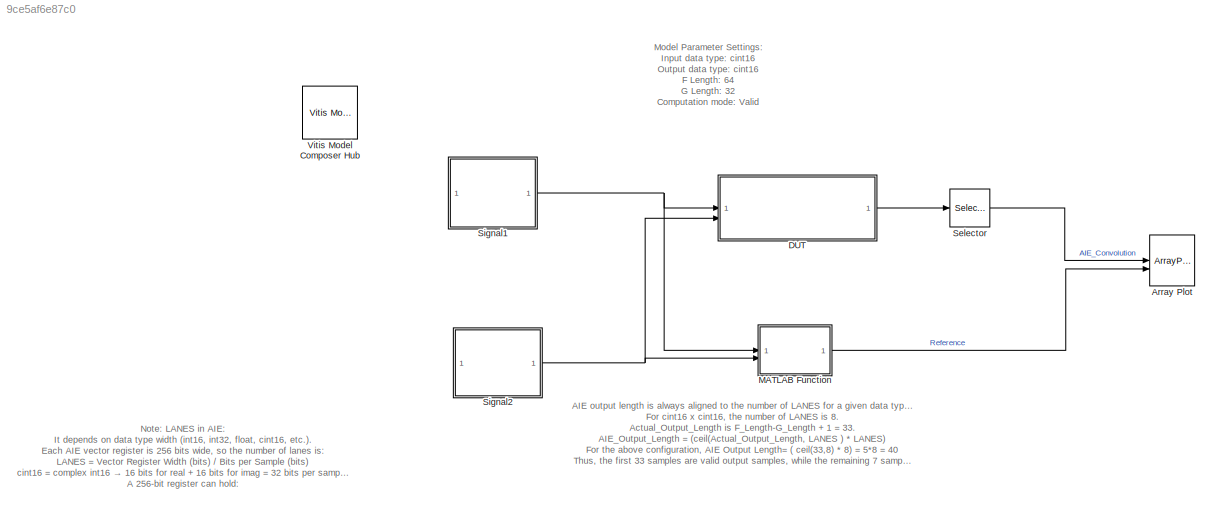
MODEL slx_9ce5af6e87c0
KIND model
CONFIG AbsTol = auto
CONFIG EnableMultiTasking = off
CONFIG FixedStep = auto
CONFIG MaxStep = auto
CONFIG MinStep = auto
CONFIG RelTol = 1e-3
CONFIG SampleTimeConstraint = Unconstrained
CONFIG SolverName = VariableStepAuto
CONFIG StartTime = 0.0
CONFIG StopTime = 1024/100e6
BLOCK [ArrayPlot] Array Plot
  GraphicalSettings = {"Style":{"BackgroundColor":[0.12941176470588237,0.12941176470588237,0.12941176470588237],"AxesColor":[0.070588235294117646,0.070588235294117646,0.070588235294117646],"LabelsColor":[0.85098039215686272,0.85098039215686272,0.85098039215686272],"PreserveColors":false,"Visible":[false,false,true,true],"LineStyle":["-","-","-","-"],"LineWidth":[1.5,1.5,1.5,1.5],"BarWidth":[0.9,0.9,0.9,0.9],"LineColor"...<+353ch>
  NumInputPorts = 2
  ScopeFrameLocation = window
  ShowLegend = on
  WasSavedAsWebScope = on
  WindowPosition = [560.000000,350.000000,800.000000,500.000000,]
  YLimits = [-25.5 29.5]
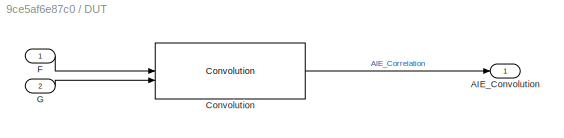
BLOCK [SubSystem] DUT
BLOCK [Outport] DUT/AIE_Convolution
BLOCK [Reference] DUT/Convolution  REF=aieDSP/Convolution
  SourceBlock = aieDSP/Convolution
  SourceType = Convolution
BLOCK [Inport] DUT/F
BLOCK [Inport] DUT/G
  Port = 2
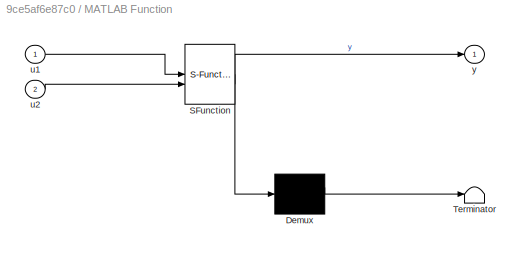
BLOCK [SubSystem] MATLAB Function
  ErrorFcn = Stateflow.Translate.translate
  PermitHierarchicalResolution = ExplicitOnly
  SFBlockType = MATLAB Function
  TreatAsAtomicUnit = on
BLOCK [Demux] MATLAB Function/ Demux 
  Outputs = 1
BLOCK [S-Function] MATLAB Function/ SFunction 
  EnableBusSupport = off
  FunctionName = sf_sfun
  PortCounts = [2 2]
  SFcnIsStateOwnerBlock = off
  SFunctionDeploymentMode = off
  Tag = Stateflow S-Function 2
BLOCK [Terminator] MATLAB Function/ Terminator 
BLOCK [Inport] MATLAB Function/u1
BLOCK [Inport] MATLAB Function/u2
  Port = 2
BLOCK [Outport] MATLAB Function/y
BLOCK [Selector] Selector
  IndexOptions = Index vector (dialog)
  Indices = 1:1:64-(32-1)
  InputPortWidth = 40
  OutputSizes = 1
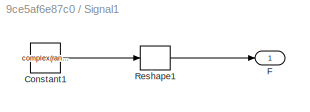
BLOCK [SubSystem] Signal1
BLOCK [Constant] Signal1/Constant1
  OutDataTypeStr = int16
  SampleTime = 1/100e6
  Value = complex(randn(1,64),randn(1,64))
BLOCK [Outport] Signal1/F
BLOCK [Reshape] Signal1/Reshape1
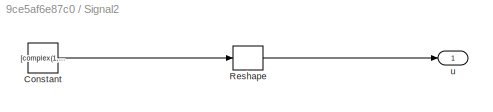
BLOCK [SubSystem] Signal2
BLOCK [Constant] Signal2/Constant
  OutDataTypeStr = int16
  SampleTime = 1/100e6
  Value = [complex(1,5) ones(1,31)]
BLOCK [Reshape] Signal2/Reshape
BLOCK [Outport] Signal2/u
BLOCK [Reference] Vitis Model Composer Hub  REF=vmcUtilities/Vitis Model Composer Hub
  SourceBlock = vmcUtilities/Vitis Model Composer Hub
  SourceType = VMC Hub
  Tag = genX
  UserDataPersistent = on
ANNOTATION (root): Model Parameter Settings: Input data type: cint16 Output data type: cint16 F Length: 64 G Length: 32 Computation mode: Valid
ANNOTATION (root): Note: LANES in AIE: It depends on data type width (int16, int32, float, cint16, etc.). Each AIE vector register is 256 bits wide, so the number of lanes is: LANES = Vector Register Width (bits)​ / Bits per Sample (bits) cint16 = complex int16 → 16 bits for real + 16 bits for imag = 32 bits per sample. A 256-bit register can hold: 256/32 = 8 LANES ​
ANNOTATION (root): AIE output length is always aligned to the number of LANES for a given data type combination. For cint16 x cint16 , the number of LANES is 8. Actual_Output_Length is F_Length-G_Length + 1 = 33. AIE_Output_Length = (ceil(Actual_Output_Length, LANES ) * LANES) For the above configuration, AIE Output Length= ( ceil(33,8) * 8) = 5*8 = 40 Thus, the first 33 samples are valid output samples, while the r...<+41ch>
LINE DUT/Convolution:1 -> DUT/AIE_Convolution:1
LINE DUT/F:1 -> DUT/Convolution:1
LINE DUT/G:1 -> DUT/Convolution:2
LINE DUT:1 -> Selector:1
LINE MATLAB Function:1 -> Array Plot:2
LINE Selector:1 -> Array Plot:1
LINE Signal1/Constant1:1 -> Signal1/Reshape1:1
LINE Signal1/Reshape1:1 -> Signal1/F:1
NET Signal1:1 -> DUT:1, MATLAB Function:1
LINE Signal2/Constant:1 -> Signal2/Reshape:1
LINE Signal2/Reshape:1 -> Signal2/u:1
NET Signal2:1 -> DUT:2, MATLAB Function:2
note: NET lines group one-source signal fan-out (src -> all destinations, sorted); 1:1 wires keep LINE
CHART MATLAB Function states=1 transitions=1
  STATE_LABEL 'eML_blk_kernel()'
  STATE_LABEL "SCRIPT:\nfunction y = func(u1,u2)\n\ny = int16(conv(u1,u2,'valid'));\n\n"
CHART  states=0 transitions=0
